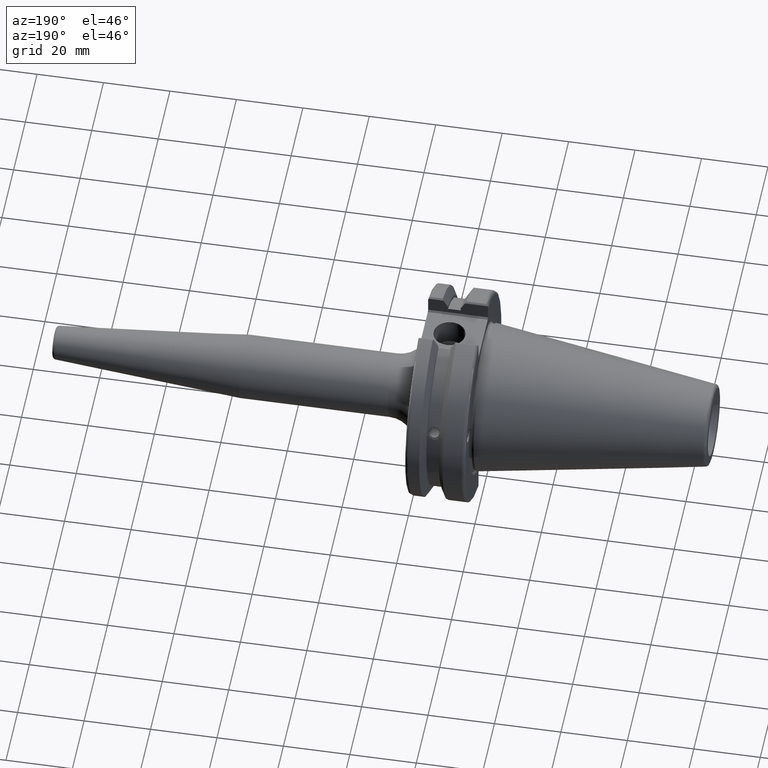
[diagram: clean part render]
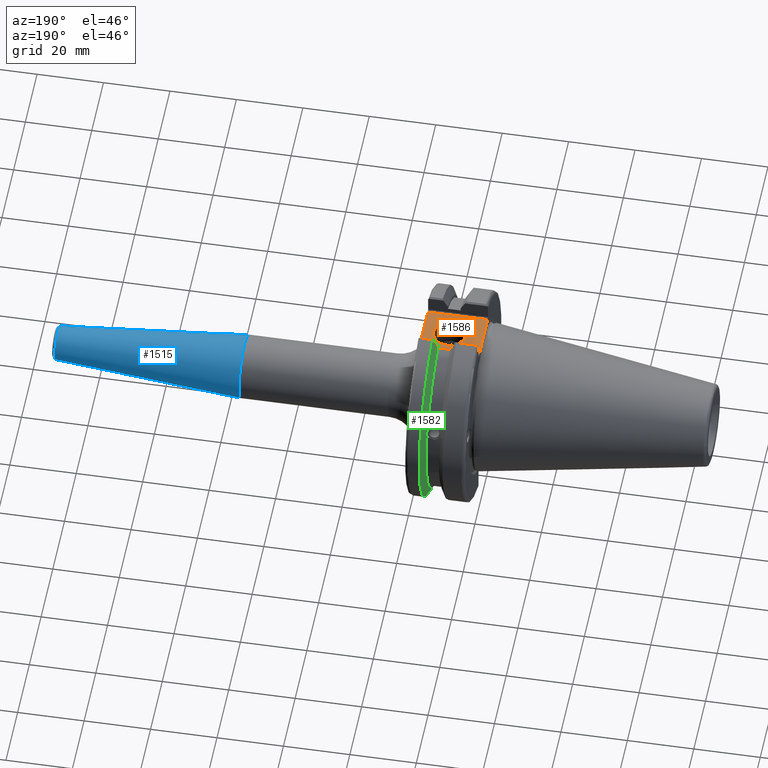
[diagram: same view with three faces highlighted in distinct colors, each labeled with its STEP entity id]
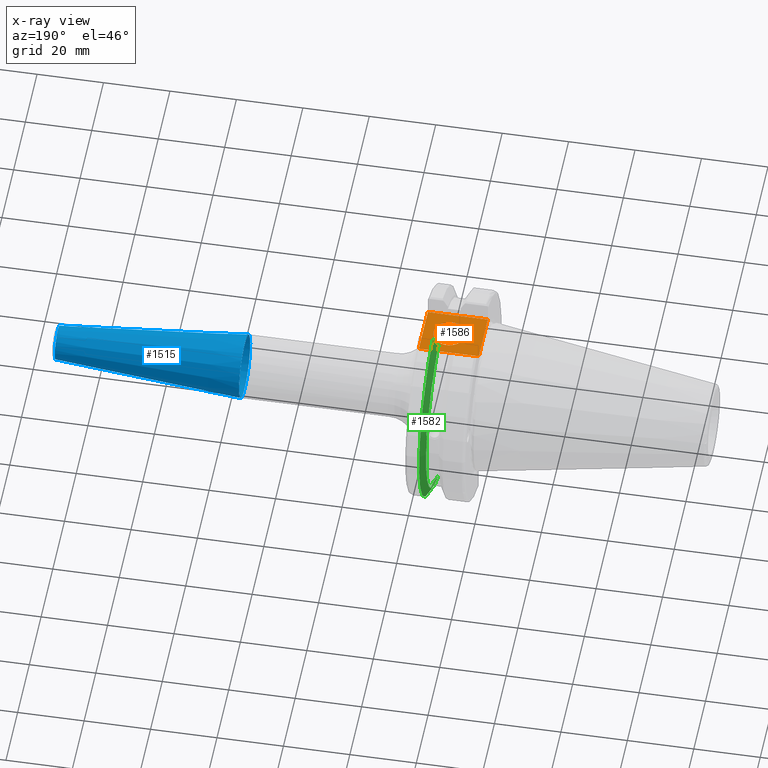
[diagram: x-ray of the same camera — body ghosted, the three highlighted faces saturated]
A machine part, auxiliary view with three faces highlighted in distinct colors.
The next image is the same camera in x-ray (body ghosted, the three faces saturated) — at least one of them is partly hidden behind the body in this view.
Their STEP definitions:

[orange] entity #1586 — the highlighted planar face has unit normal (0, 0, 1).
#101=LINE('',#2311,#197);
#162=LINE('',#2929,#258);
#174=LINE('',#2974,#270);
#176=LINE('',#2977,#272);
#197=VECTOR('',#1857,10.);
#258=VECTOR('',#2116,10.);
#270=VECTOR('',#2158,10.);
#272=VECTOR('',#2162,10.);
#327=FACE_BOUND('',#541,.T.);
#361=PLANE('',#1780);
#441=FACE_OUTER_BOUND('',#540,.T.);
#540=EDGE_LOOP('',(#1446,#1447,#1448,#1449));
#541=EDGE_LOOP('',(#1450));
#617=CIRCLE('',#1772,4.7625);
#646=VERTEX_POINT('',#2308);
#647=VERTEX_POINT('',#2310);
#760=VERTEX_POINT('',#2926);
#761=VERTEX_POINT('',#2928);
#781=VERTEX_POINT('',#3013);
#808=EDGE_CURVE('',#646,#647,#101,.T.);
#968=EDGE_CURVE('',#760,#761,#162,.T.);
#989=EDGE_CURVE('',#647,#760,#174,.T.);
#991=EDGE_CURVE('',#761,#646,#176,.T.);
#1006=EDGE_CURVE('',#781,#781,#617,.T.);
#1446=ORIENTED_EDGE('',*,*,#989,.F.);
#1447=ORIENTED_EDGE('',*,*,#808,.F.);
#1448=ORIENTED_EDGE('',*,*,#991,.F.);
#1449=ORIENTED_EDGE('',*,*,#968,.F.);
#1450=ORIENTED_EDGE('',*,*,#1006,.T.);
#1586=ADVANCED_FACE('',(#441,#327),#361,.T.);
#1772=AXIS2_PLACEMENT_3D('',#3014,#2197,#2198);
#1780=AXIS2_PLACEMENT_3D('',#3023,#2214,#2215);
#1857=DIRECTION('',(0.,-1.,0.));
#2116=DIRECTION('',(0.,1.,0.));
#2158=DIRECTION('',(-1.,1.16558847729675E-16,0.));
#2162=DIRECTION('',(1.,0.,0.));
#2197=DIRECTION('center_axis',(0.,0.,-1.));
#2198=DIRECTION('ref_axis',(1.,0.,0.));
#2214=DIRECTION('center_axis',(0.,0.,1.));
#2215=DIRECTION('ref_axis',(1.,0.,0.));
#2308=CARTESIAN_POINT('',(19.05,7.69,25.));
#2310=CARTESIAN_POINT('',(19.05,-7.69,25.));
#2311=CARTESIAN_POINT('',(19.05,0.,25.));
#2926=CARTESIAN_POINT('',(1.,-7.68999999999999,25.));
#2928=CARTESIAN_POINT('',(1.,7.69,25.));
#2929=CARTESIAN_POINT('',(1.,15.875,25.));
#2974=CARTESIAN_POINT('',(7.81,-7.69,25.));
#2977=CARTESIAN_POINT('',(17.335,7.69,25.));
#3013=CARTESIAN_POINT('',(6.4135,-5.83238038093927E-16,25.));
#3014=CARTESIAN_POINT('Origin',(11.176,0.,25.));
#3023=CARTESIAN_POINT('Origin',(14.62,0.,25.));

[blue] entity #1515 — the highlighted conical surface has half-angle 4.5 deg.
#81=CONICAL_SURFACE('',#1635,7.25000000000002,0.0785398163397453);
#97=LINE('',#2290,#193);
#193=VECTOR('',#1835,7.25000000000002);
#370=FACE_OUTER_BOUND('',#459,.T.);
#459=EDGE_LOOP('',(#1043,#1044,#1045,#1046,#1047));
#563=CIRCLE('',#1633,5.07252684207495);
#564=CIRCLE('',#1634,5.07252684207495);
#565=CIRCLE('',#1636,9.5);
#637=VERTEX_POINT('',#2283);
#638=VERTEX_POINT('',#2285);
#639=VERTEX_POINT('',#2289);
#796=EDGE_CURVE('',#637,#638,#563,.T.);
#797=EDGE_CURVE('',#638,#637,#564,.T.);
#798=EDGE_CURVE('',#638,#639,#97,.T.);
#799=EDGE_CURVE('',#639,#639,#565,.T.);
#1043=ORIENTED_EDGE('',*,*,#797,.F.);
#1044=ORIENTED_EDGE('',*,*,#798,.T.);
#1045=ORIENTED_EDGE('',*,*,#799,.T.);
#1046=ORIENTED_EDGE('',*,*,#798,.F.);
#1047=ORIENTED_EDGE('',*,*,#796,.F.);
#1515=ADVANCED_FACE('',(#370),#81,.T.);
#1633=AXIS2_PLACEMENT_3D('',#2286,#1829,#1830);
#1634=AXIS2_PLACEMENT_3D('',#2287,#1831,#1832);
#1635=AXIS2_PLACEMENT_3D('',#2288,#1833,#1834);
#1636=AXIS2_PLACEMENT_3D('',#2291,#1836,#1837);
#1829=DIRECTION('center_axis',(1.,0.,0.));
#1830=DIRECTION('ref_axis',(0.,-1.,3.06161699786838E-17));
#1831=DIRECTION('center_axis',(1.,0.,0.));
#1832=DIRECTION('ref_axis',(0.,-1.,3.06161699786838E-17));
#1833=DIRECTION('center_axis',(-1.,0.,0.));
#1834=DIRECTION('ref_axis',(0.,1.,0.));
#1835=DIRECTION('',(-0.996917333733128,-0.0784590957278454,-9.60846804471016E-18));
#1836=DIRECTION('center_axis',(1.,0.,0.));
#1837=DIRECTION('ref_axis',(0.,0.,-1.));
#2283=CARTESIAN_POINT('',(129.078459095728,-6.21205376073612E-16,5.07252684207495));
#2285=CARTESIAN_POINT('',(129.078459095728,-5.07252684207495,-6.21205376073612E-16));
#2286=CARTESIAN_POINT('Origin',(129.078459095728,0.,-7.76506720092016E-16));
#2287=CARTESIAN_POINT('Origin',(129.078459095728,0.,-7.76506720092016E-16));
#2288=CARTESIAN_POINT('Origin',(101.411039343607,0.,0.));
#2289=CARTESIAN_POINT('',(72.8220786872146,-9.5,-1.16341445918999E-15));
#2290=CARTESIAN_POINT('',(101.411039343607,-7.25000000000002,-8.87868929381833E-16));
#2291=CARTESIAN_POINT('Origin',(72.8220786872146,0.,0.));

[green] entity #1582 — the highlighted conical surface has half-angle 60 deg.
#23=(
BOUNDED_CURVE()
B_SPLINE_CURVE(2,(#2765,#2766,#2767),.UNSPECIFIED.,.F.,.F.)
B_SPLINE_CURVE_WITH_KNOTS((3,3),(0.329353533631205,0.393258405001023),
 .UNSPECIFIED.)
CURVE()
GEOMETRIC_REPRESENTATION_ITEM()
RATIONAL_B_SPLINE_CURVE((1.00047644010577,1.00028444218286,1.))
REPRESENTATION_ITEM('')
);
#24=(
BOUNDED_CURVE()
B_SPLINE_CURVE(2,(#2782,#2783,#2784),.UNSPECIFIED.,.F.,.F.)
B_SPLINE_CURVE_WITH_KNOTS((3,3),(0.0550586467390279,0.331607789535849),
 .UNSPECIFIED.)
CURVE()
GEOMETRIC_REPRESENTATION_ITEM()
RATIONAL_B_SPLINE_CURVE((1.00031614445116,1.00095203904229,1.))
REPRESENTATION_ITEM('')
);
#31=(
BOUNDED_CURVE()
B_SPLINE_CURVE(2,(#2982,#2983,#2984),.UNSPECIFIED.,.F.,.F.)
B_SPLINE_CURVE_WITH_KNOTS((3,3),(0.,0.276549142796813),.UNSPECIFIED.)
CURVE()
GEOMETRIC_REPRESENTATION_ITEM()
RATIONAL_B_SPLINE_CURVE((1.,1.00095203904207,1.00031614445109))
REPRESENTATION_ITEM('')
);
#32=(
BOUNDED_CURVE()
B_SPLINE_CURVE(2,(#2999,#3000,#3001),.UNSPECIFIED.,.F.,.F.)
B_SPLINE_CURVE_WITH_KNOTS((3,3),(0.,0.0639048713675949),.UNSPECIFIED.)
CURVE()
GEOMETRIC_REPRESENTATION_ITEM()
RATIONAL_B_SPLINE_CURVE((1.,1.00028444218283,1.00047644010573))
REPRESENTATION_ITEM('')
);
#60=B_SPLINE_CURVE_WITH_KNOTS('',3,(#2600,#2601,#2602,#2603,#2604,#2605,
#2606,#2607),.UNSPECIFIED.,.F.,.F.,(4,2,2,4),(0.451995700189027,0.464547828547661,
0.504528771685166,0.544509714822671),.UNSPECIFIED.);
#64=B_SPLINE_CURVE_WITH_KNOTS('',3,(#2662,#2663,#2664,#2665,#2666,#2667,
#2668,#2669),.UNSPECIFIED.,.F.,.F.,(4,2,2,4),(0.544509714822671,0.584490657960176,
0.624471601097681,0.637023729456316),.UNSPECIFIED.);
#91=CONICAL_SURFACE('',#1773,30.3546886482472,1.0471975511966);
#437=FACE_OUTER_BOUND('',#536,.T.);
#536=EDGE_LOOP('',(#1425,#1426,#1427,#1428,#1429,#1430,#1431,#1432,#1433));
#596=CIRCLE('',#1713,28.9593772964944);
#615=CIRCLE('',#1766,31.75);
#618=CIRCLE('',#1774,28.9593772964944);
#704=VERTEX_POINT('',#2597);
#705=VERTEX_POINT('',#2599);
#712=VERTEX_POINT('',#2660);
#721=VERTEX_POINT('',#2702);
#732=VERTEX_POINT('',#2762);
#733=VERTEX_POINT('',#2764);
#774=VERTEX_POINT('',#2979);
#775=VERTEX_POINT('',#2981);
#778=VERTEX_POINT('',#2997);
#888=EDGE_CURVE('',#705,#704,#60,.T.);
#896=EDGE_CURVE('',#704,#712,#64,.T.);
#908=EDGE_CURVE('',#721,#705,#596,.T.);
#926=EDGE_CURVE('',#732,#733,#23,.T.);
#932=EDGE_CURVE('',#732,#721,#24,.T.);
#993=EDGE_CURVE('',#775,#774,#31,.T.);
#1001=EDGE_CURVE('',#778,#774,#32,.T.);
#1002=EDGE_CURVE('',#733,#778,#615,.T.);
#1008=EDGE_CURVE('',#712,#775,#618,.T.);
#1425=ORIENTED_EDGE('',*,*,#888,.T.);
#1426=ORIENTED_EDGE('',*,*,#896,.T.);
#1427=ORIENTED_EDGE('',*,*,#1008,.T.);
#1428=ORIENTED_EDGE('',*,*,#993,.T.);
#1429=ORIENTED_EDGE('',*,*,#1001,.F.);
#1430=ORIENTED_EDGE('',*,*,#1002,.F.);
#1431=ORIENTED_EDGE('',*,*,#926,.F.);
#1432=ORIENTED_EDGE('',*,*,#932,.T.);
#1433=ORIENTED_EDGE('',*,*,#908,.T.);
#1582=ADVANCED_FACE('',(#437),#91,.T.);
#1713=AXIS2_PLACEMENT_3D('',#2703,#2029,#2030);
#1766=AXIS2_PLACEMENT_3D('',#3003,#2183,#2184);
#1773=AXIS2_PLACEMENT_3D('',#3016,#2200,#2201);
#1774=AXIS2_PLACEMENT_3D('',#3017,#2202,#2203);
#2029=DIRECTION('center_axis',(1.,0.,0.));
#2030=DIRECTION('ref_axis',(0.,0.,-1.));
#2183=DIRECTION('center_axis',(1.,0.,0.));
#2184=DIRECTION('ref_axis',(0.,0.,-1.));
#2200=DIRECTION('center_axis',(1.,0.,0.));
#2201=DIRECTION('ref_axis',(0.,1.,0.));
#2202=DIRECTION('center_axis',(1.,0.,0.));
#2203=DIRECTION('ref_axis',(0.,0.,-1.));
#2597=CARTESIAN_POINT('',(13.276,27.51401829017,10.0142836826778));
#2599=CARTESIAN_POINT('',(13.091,27.4956274489925,9.09043478536249));
#2600=CARTESIAN_POINT('Ctrl Pts',(13.091,27.4956274489925,9.09043478536249));
#2601=CARTESIAN_POINT('Ctrl Pts',(13.1051204071996,27.5087667900418,9.1286059707622));
#2602=CARTESIAN_POINT('Ctrl Pts',(13.1185929817857,27.5206055003512,9.16696618806879));
#2603=CARTESIAN_POINT('Ctrl Pts',(13.171981441159,27.5642934663232,9.32791534028656));
#2604=CARTESIAN_POINT('Ctrl Pts',(13.2101197084175,27.5867382255984,9.46717946402648));
#2605=CARTESIAN_POINT('Ctrl Pts',(13.2623106446058,27.5847569104122,9.74771639360672));
#2606=CARTESIAN_POINT('Ctrl Pts',(13.276,27.559599249844,9.8890510252165));
#2607=CARTESIAN_POINT('Ctrl Pts',(13.276,27.51401829017,10.0142836826778));
#2660=CARTESIAN_POINT('',(13.091,26.9060914640648,10.7101715919071));
#2662=CARTESIAN_POINT('Ctrl Pts',(13.276,27.51401829017,10.0142836826778));
#2663=CARTESIAN_POINT('Ctrl Pts',(13.276,27.4684373304961,10.139516340139));
#2664=CARTESIAN_POINT('Ctrl Pts',(13.2623106446058,27.3968610665578,10.2639559818059));
#2665=CARTESIAN_POINT('Ctrl Pts',(13.2101197084175,27.2180531796526,10.4801333026531));
#2666=CARTESIAN_POINT('Ctrl Pts',(13.171981441159,27.1113422433189,10.5723885976054));
#2667=CARTESIAN_POINT('Ctrl Pts',(13.1185929817857,26.9744191989197,10.6676007180673));
#2668=CARTESIAN_POINT('Ctrl Pts',(13.1051204071996,26.9406927482839,10.6893765730703));
#2669=CARTESIAN_POINT('Ctrl Pts',(13.091,26.9060914640648,10.7101715919071));
#2702=CARTESIAN_POINT('',(13.091,8.19,-27.7771386827498));
#2703=CARTESIAN_POINT('Origin',(13.091,0.,0.));
#2762=CARTESIAN_POINT('',(14.4234146964874,8.19,-30.1755016258903));
#2764=CARTESIAN_POINT('',(14.7021667690756,8.67204822802685,-30.5427254764662));
#2765=CARTESIAN_POINT('Ctrl Pts',(14.4234146964874,8.19,-30.1755016258903));
#2766=CARTESIAN_POINT('Ctrl Pts',(14.5611085187884,8.42917748263465,-30.3577067892692));
#2767=CARTESIAN_POINT('Ctrl Pts',(14.7021667690756,8.67204822802686,-30.5427254764662));
#2782=CARTESIAN_POINT('Ctrl Pts',(14.4234146964874,8.19,-30.1755016258903));
#2783=CARTESIAN_POINT('Ctrl Pts',(13.7296364384736,8.19,-28.9303689539661));
#2784=CARTESIAN_POINT('Ctrl Pts',(13.091,8.19,-27.7771386827498));
#2979=CARTESIAN_POINT('',(14.4234146964874,8.19,30.1755016258903));
#2981=CARTESIAN_POINT('',(13.091,8.19,27.7771386827498));
#2982=CARTESIAN_POINT('Ctrl Pts',(13.091,8.19,27.7771386827498));
#2983=CARTESIAN_POINT('Ctrl Pts',(13.7296364384736,8.19,28.930368953966));
#2984=CARTESIAN_POINT('Ctrl Pts',(14.4234146964874,8.19,30.1755016258903));
#2997=CARTESIAN_POINT('',(14.7021667690756,8.67204822802685,30.5427254764662));
#2999=CARTESIAN_POINT('Ctrl Pts',(14.7021667690756,8.67204822802686,30.5427254764662));
#3000=CARTESIAN_POINT('Ctrl Pts',(14.5611085187837,8.42917748262646,30.357706789263));
#3001=CARTESIAN_POINT('Ctrl Pts',(14.4234146964874,8.19,30.1755016258903));
#3003=CARTESIAN_POINT('Origin',(14.7021667690756,0.,0.));
#3016=CARTESIAN_POINT('Origin',(13.8965833845378,0.,0.));
#3017=CARTESIAN_POINT('Origin',(13.091,0.,0.));